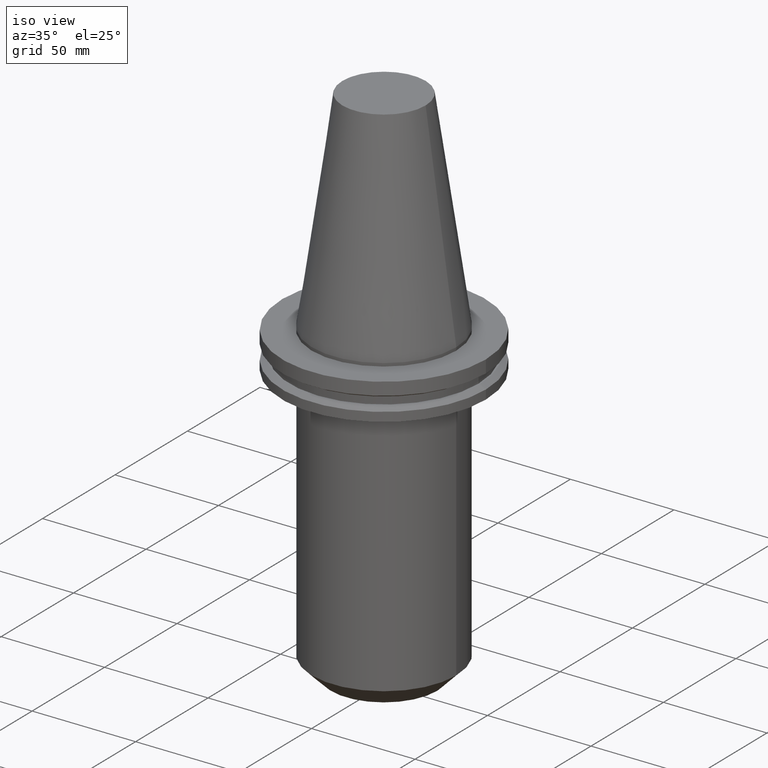
[diagram: clean part render]
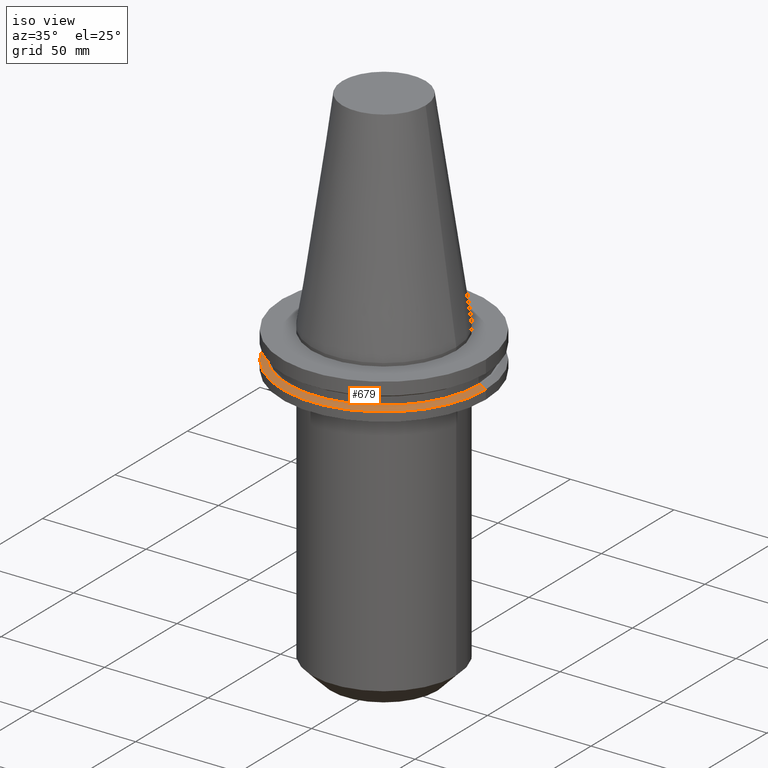
[diagram: same view with one face highlighted and labeled with its STEP entity id]
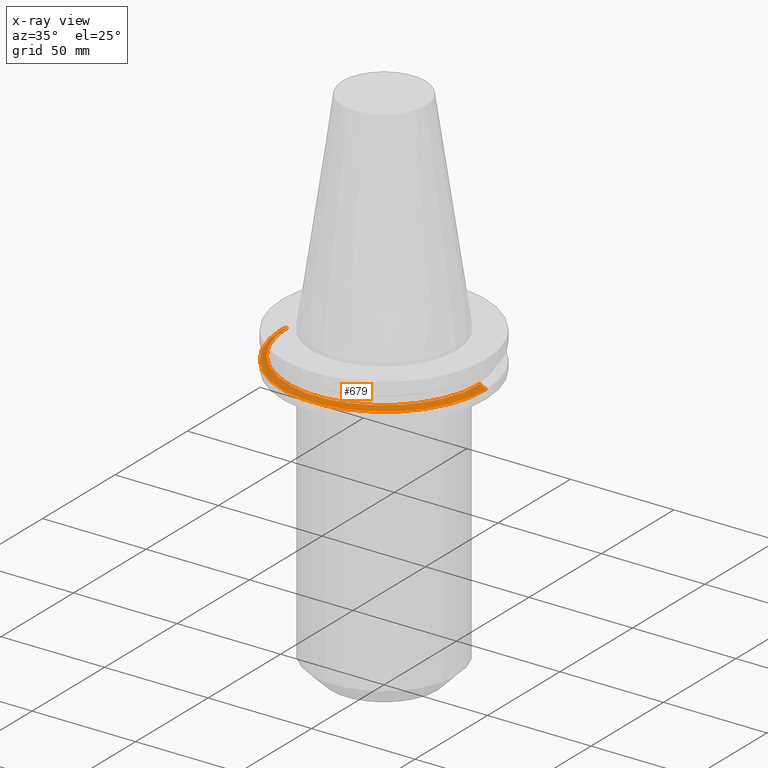
[diagram: x-ray of the same camera — body ghosted, the highlighted face saturated]
A machine part, iso view. The second image highlights one B-rep face of the part: STEP entity #679.
The next image is the same camera in x-ray: the body ghosted, the highlighted face saturated — about 0% of this face is hidden behind the body in this view.
In plain terms, the highlighted conical surface has half-angle 60 deg.
Its self-contained STEP definition (entity closure, byte-faithful):
#8 = AXIS2_PLACEMENT_3D ( 'NONE', #464, #575, #22 ) ;
#18 = EDGE_CURVE ( 'NONE', #765, #372, #161, .T. ) ;
#22 = DIRECTION ( 'NONE',  ( -1.000000000000000000, 0.000000000000000000, 0.000000000000000000 ) ) ;
#44 = VECTOR ( 'NONE', #325, 1000.000000000000114 ) ;
#51 = ORIENTED_EDGE ( 'NONE', *, *, #18, .F. ) ;
#54 = CARTESIAN_POINT ( 'NONE',  ( 0.000000000000000000, 0.000000000000000000, -13.05499999999999794 ) ) ;
#59 = AXIS2_PLACEMENT_3D ( 'NONE', #54, #116, #246 ) ;
#84 = ORIENTED_EDGE ( 'NONE', *, *, #138, .T. ) ;
#107 = VERTEX_POINT ( 'NONE', #734 ) ;
#108 = EDGE_CURVE ( 'NONE', #765, #107, #126, .T. ) ;
#112 = CIRCLE ( 'NONE', #281, 49.21499999999998920 ) ;
#116 = DIRECTION ( 'NONE',  ( -0.000000000000000000, -0.000000000000000000, 1.000000000000000000 ) ) ;
#125 = EDGE_CURVE ( 'NONE', #372, #728, #627, .T. ) ;
#126 = LINE ( 'NONE', #130, #44 ) ;
#130 = CARTESIAN_POINT ( 'NONE',  ( -49.21499999999998920, 0.000000000000000000, -14.65761014474876944 ) ) ;
#134 = DIRECTION ( 'NONE',  ( -0.000000000000000000, -0.000000000000000000, 1.000000000000000000 ) ) ;
#138 = EDGE_CURVE ( 'NONE', #107, #728, #112, .T. ) ;
#160 = CARTESIAN_POINT ( 'NONE',  ( 46.43919780457007818, 5.857130358318725715E-15, -13.05499999999999794 ) ) ;
#161 = CIRCLE ( 'NONE', #59, 46.43919780457007818 ) ;
#168 = ORIENTED_EDGE ( 'NONE', *, *, #125, .F. ) ;
#192 = DIRECTION ( 'NONE',  ( 0.8660254037844169472, 1.060575238724880168E-16, -0.5000000000000375255 ) ) ;
#200 = CARTESIAN_POINT ( 'NONE',  ( 49.21499999999998920, 6.027099222003697037E-15, -14.65761014474876944 ) ) ;
#213 = FACE_OUTER_BOUND ( 'NONE', #346, .T. ) ;
#246 = DIRECTION ( 'NONE',  ( 1.000000000000000000, 0.000000000000000000, 0.000000000000000000 ) ) ;
#281 = AXIS2_PLACEMENT_3D ( 'NONE', #565, #134, #387 ) ;
#325 = DIRECTION ( 'NONE',  ( -0.8660254037844169472, 0.000000000000000000, -0.5000000000000375255 ) ) ;
#346 = EDGE_LOOP ( 'NONE', ( #168, #51, #757, #84 ) ) ;
#372 = VERTEX_POINT ( 'NONE', #160 ) ;
#387 = DIRECTION ( 'NONE',  ( 1.000000000000000000, 0.000000000000000000, 0.000000000000000000 ) ) ;
#458 = CARTESIAN_POINT ( 'NONE',  ( 49.21499999999998920, 0.000000000000000000, -14.65761014474876944 ) ) ;
#464 = CARTESIAN_POINT ( 'NONE',  ( 0.000000000000000000, 0.000000000000000000, -14.65761014474876944 ) ) ;
#520 = CARTESIAN_POINT ( 'NONE',  ( -46.43919780457007818, 0.000000000000000000, -13.05499999999999794 ) ) ;
#565 = CARTESIAN_POINT ( 'NONE',  ( 0.000000000000000000, 0.000000000000000000, -14.65761014474876944 ) ) ;
#575 = DIRECTION ( 'NONE',  ( 0.000000000000000000, 0.000000000000000000, -1.000000000000000000 ) ) ;
#625 = VECTOR ( 'NONE', #192, 1000.000000000000114 ) ;
#627 = LINE ( 'NONE', #200, #625 ) ;
#679 = ADVANCED_FACE ( 'NONE', ( #213 ), #694, .T. ) ;
#694 = CONICAL_SURFACE ( 'NONE', #8, 49.21499999999998920, 1.047197551196554333 ) ;
#728 = VERTEX_POINT ( 'NONE', #458 ) ;
#734 = CARTESIAN_POINT ( 'NONE',  ( -49.21499999999998920, 6.027099222003697037E-15, -14.65761014474876944 ) ) ;
#757 = ORIENTED_EDGE ( 'NONE', *, *, #108, .T. ) ;
#765 = VERTEX_POINT ( 'NONE', #520 ) ;